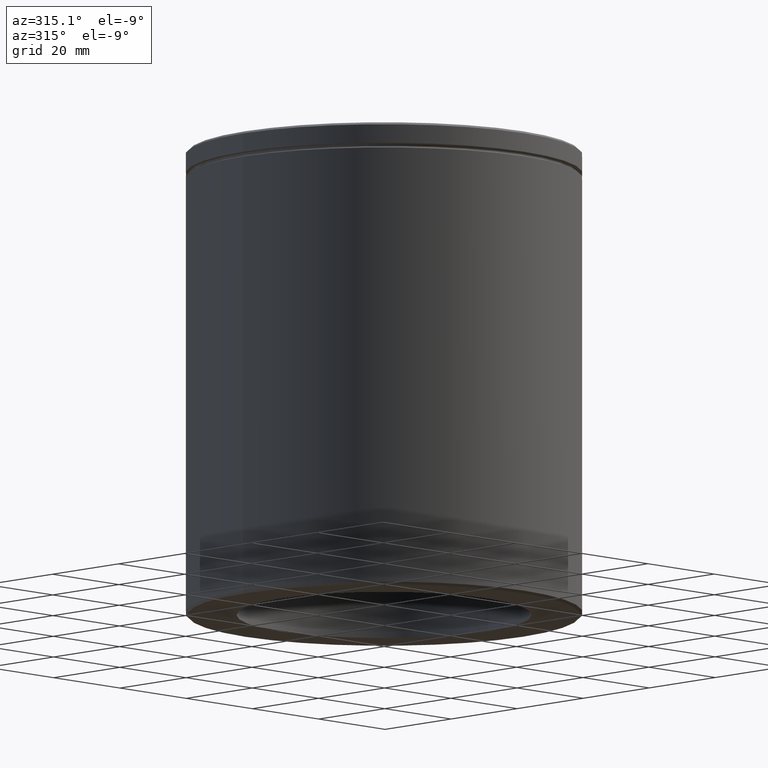
[diagram: clean part render]
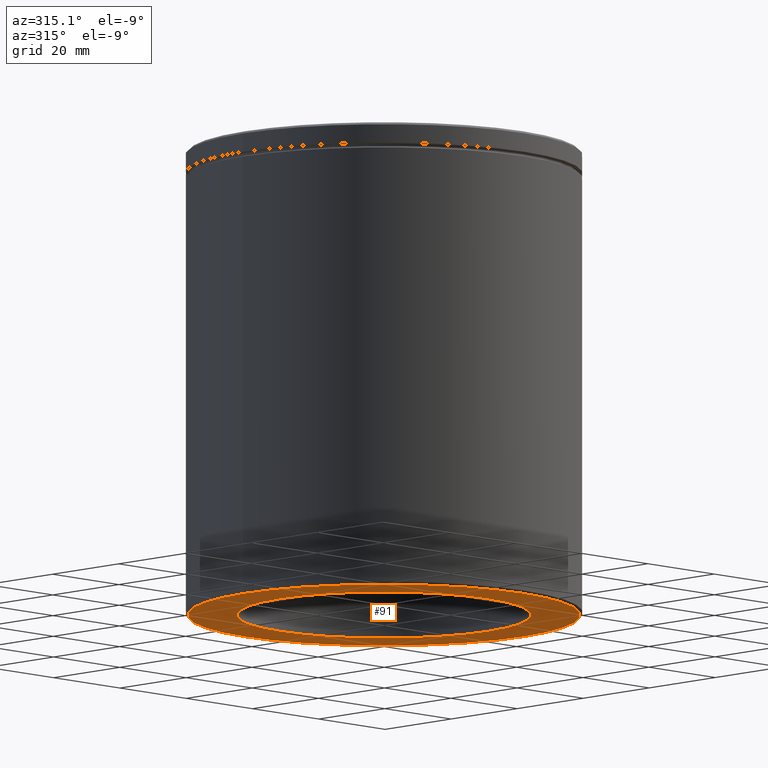
[diagram: same view with one face highlighted and labeled with its STEP entity id]
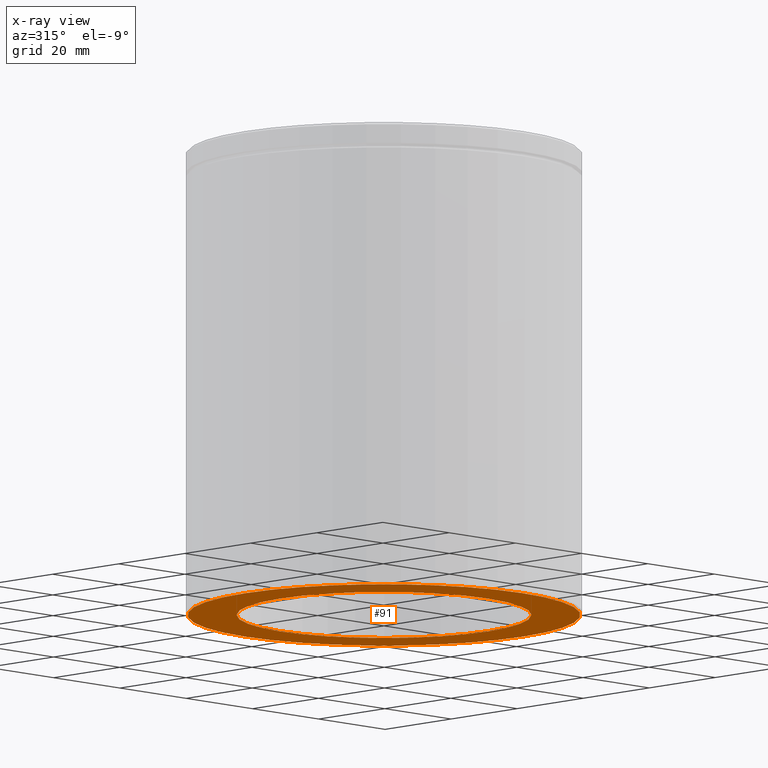
[diagram: x-ray of the same camera — body ghosted, the highlighted face saturated]
A machine part, auxiliary view. The second image highlights one B-rep face of the part: STEP entity #91.
The next image is the same camera in x-ray: the body ghosted, the highlighted face saturated — about 0% of this face is hidden behind the body in this view.
In plain terms, the highlighted planar face has unit normal (0, 0, -1).
Its self-contained STEP definition (entity closure, byte-faithful):
#8 = VERTEX_POINT ( 'NONE', #397 ) ;
#11 = AXIS2_PLACEMENT_3D ( 'NONE', #284, #497, #61 ) ;
#13 = VERTEX_POINT ( 'NONE', #486 ) ;
#14 = CARTESIAN_POINT ( 'NONE',  ( 31.50000000000000000, 3.857637417314162689E-15, -100.0000000000000000 ) ) ;
#17 = DIRECTION ( 'NONE',  ( 0.000000000000000000, 0.000000000000000000, -1.000000000000000000 ) ) ;
#27 = ORIENTED_EDGE ( 'NONE', *, *, #281, .F. ) ;
#59 = DIRECTION ( 'NONE',  ( -1.000000000000000000, 0.000000000000000000, 0.000000000000000000 ) ) ;
#61 = DIRECTION ( 'NONE',  ( -1.000000000000000000, 0.000000000000000000, 0.000000000000000000 ) ) ;
#91 = ADVANCED_FACE ( 'NONE', ( #149, #195 ), #324, .T. ) ;
#95 = ORIENTED_EDGE ( 'NONE', *, *, #114, .F. ) ;
#101 = CIRCLE ( 'NONE', #11, 31.50000000000000000 ) ;
#106 = EDGE_CURVE ( 'NONE', #13, #261, #346, .T. ) ;
#114 = EDGE_CURVE ( 'NONE', #133, #8, #101, .T. ) ;
#133 = VERTEX_POINT ( 'NONE', #14 ) ;
#141 = CIRCLE ( 'NONE', #213, 31.50000000000000000 ) ;
#149 = FACE_OUTER_BOUND ( 'NONE', #477, .T. ) ;
#150 = DIRECTION ( 'NONE',  ( 0.000000000000000000, 0.000000000000000000, -1.000000000000000000 ) ) ;
#180 = DIRECTION ( 'NONE',  ( -1.000000000000000000, 0.000000000000000000, 0.000000000000000000 ) ) ;
#181 = EDGE_LOOP ( 'NONE', ( #27, #95 ) ) ;
#195 = FACE_BOUND ( 'NONE', #181, .T. ) ;
#199 = AXIS2_PLACEMENT_3D ( 'NONE', #239, #17, #499 ) ;
#213 = AXIS2_PLACEMENT_3D ( 'NONE', #553, #472, #335 ) ;
#239 = CARTESIAN_POINT ( 'NONE',  ( 0.000000000000000000, 42.50000000000000000, -100.0000000000000000 ) ) ;
#261 = VERTEX_POINT ( 'NONE', #550 ) ;
#265 = ORIENTED_EDGE ( 'NONE', *, *, #106, .T. ) ;
#281 = EDGE_CURVE ( 'NONE', #8, #133, #141, .T. ) ;
#284 = CARTESIAN_POINT ( 'NONE',  ( 0.000000000000000000, 0.000000000000000000, -100.0000000000000000 ) ) ;
#306 = ORIENTED_EDGE ( 'NONE', *, *, #451, .T. ) ;
#324 = PLANE ( 'NONE',  #199 ) ;
#325 = CIRCLE ( 'NONE', #403, 41.99999999999996447 ) ;
#335 = DIRECTION ( 'NONE',  ( -1.000000000000000000, 0.000000000000000000, 0.000000000000000000 ) ) ;
#346 = CIRCLE ( 'NONE', #393, 41.99999999999996447 ) ;
#393 = AXIS2_PLACEMENT_3D ( 'NONE', #543, #150, #59 ) ;
#395 = DIRECTION ( 'NONE',  ( 0.000000000000000000, 0.000000000000000000, -1.000000000000000000 ) ) ;
#397 = CARTESIAN_POINT ( 'NONE',  ( -31.50000000000000000, 0.000000000000000000, -100.0000000000000000 ) ) ;
#403 = AXIS2_PLACEMENT_3D ( 'NONE', #528, #395, #180 ) ;
#451 = EDGE_CURVE ( 'NONE', #261, #13, #325, .T. ) ;
#472 = DIRECTION ( 'NONE',  ( 0.000000000000000000, 0.000000000000000000, -1.000000000000000000 ) ) ;
#477 = EDGE_LOOP ( 'NONE', ( #306, #265 ) ) ;
#486 = CARTESIAN_POINT ( 'NONE',  ( -41.99999999999996447, 5.174132726397564743E-15, -100.0000000000000000 ) ) ;
#497 = DIRECTION ( 'NONE',  ( 0.000000000000000000, 0.000000000000000000, -1.000000000000000000 ) ) ;
#499 = DIRECTION ( 'NONE',  ( -1.000000000000000000, 0.000000000000000000, -0.000000000000000000 ) ) ;
#528 = CARTESIAN_POINT ( 'NONE',  ( 0.000000000000000000, 0.000000000000000000, -100.0000000000000000 ) ) ;
#543 = CARTESIAN_POINT ( 'NONE',  ( 0.000000000000000000, 0.000000000000000000, -100.0000000000000000 ) ) ;
#550 = CARTESIAN_POINT ( 'NONE',  ( 41.99999999999996447, 0.000000000000000000, -100.0000000000000000 ) ) ;
#553 = CARTESIAN_POINT ( 'NONE',  ( 0.000000000000000000, 0.000000000000000000, -100.0000000000000000 ) ) ;